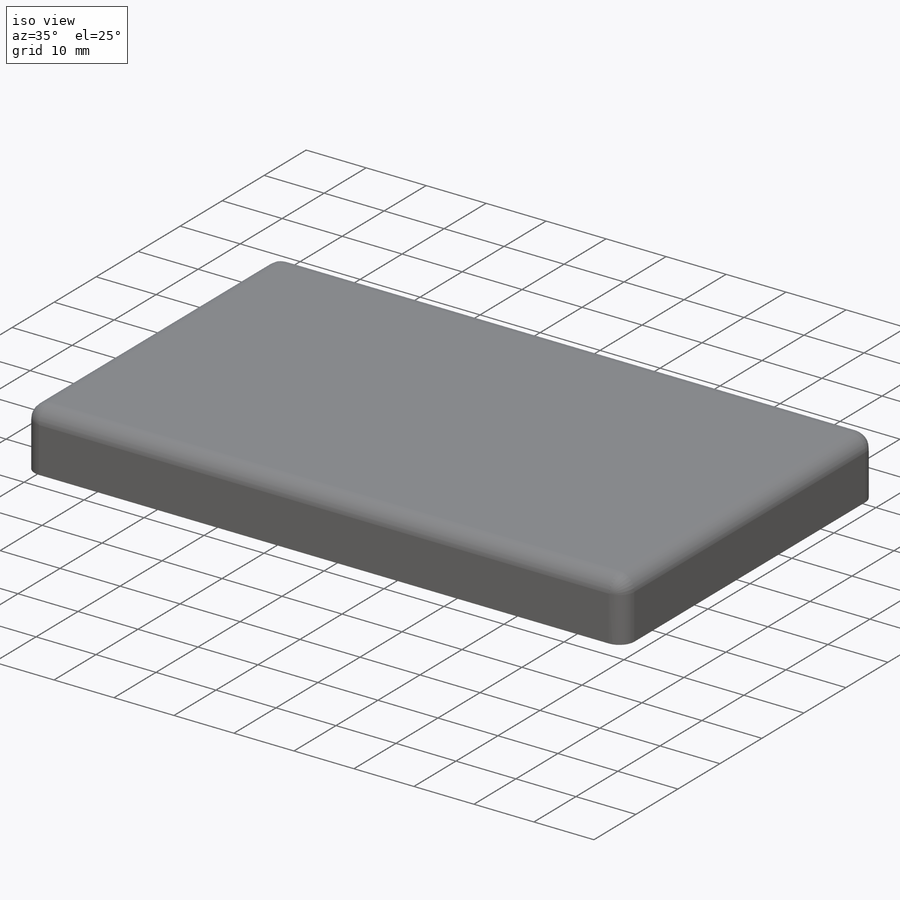
[diagram: iso view]
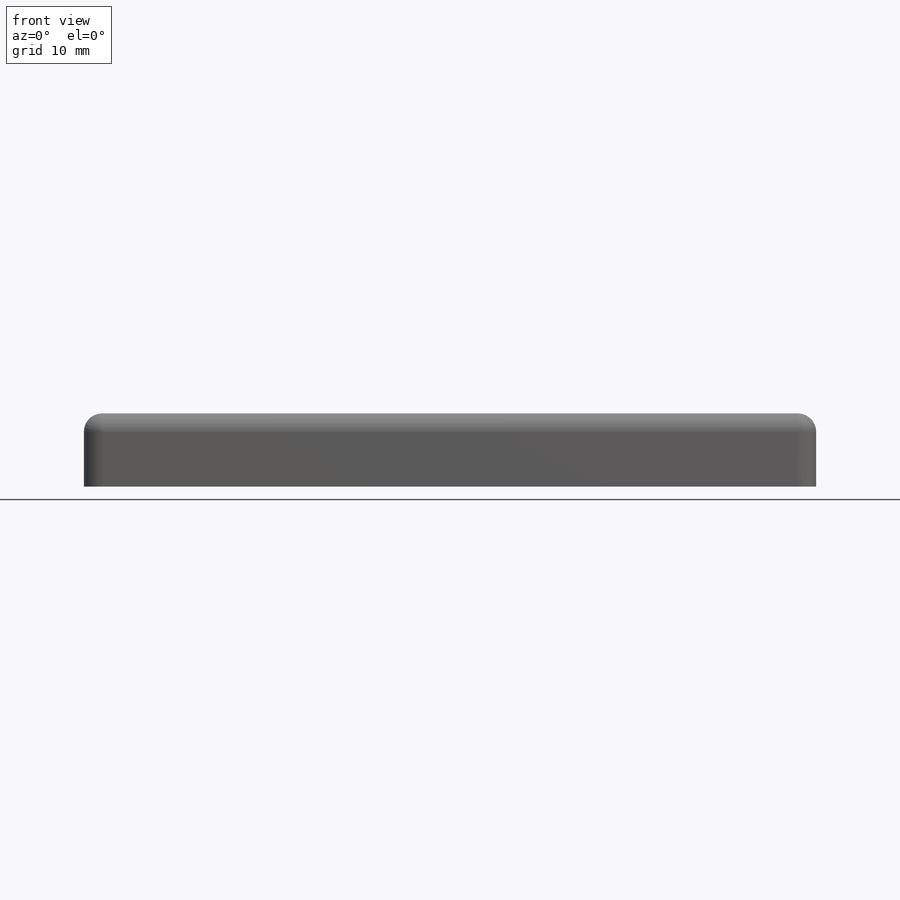
[diagram: front view]
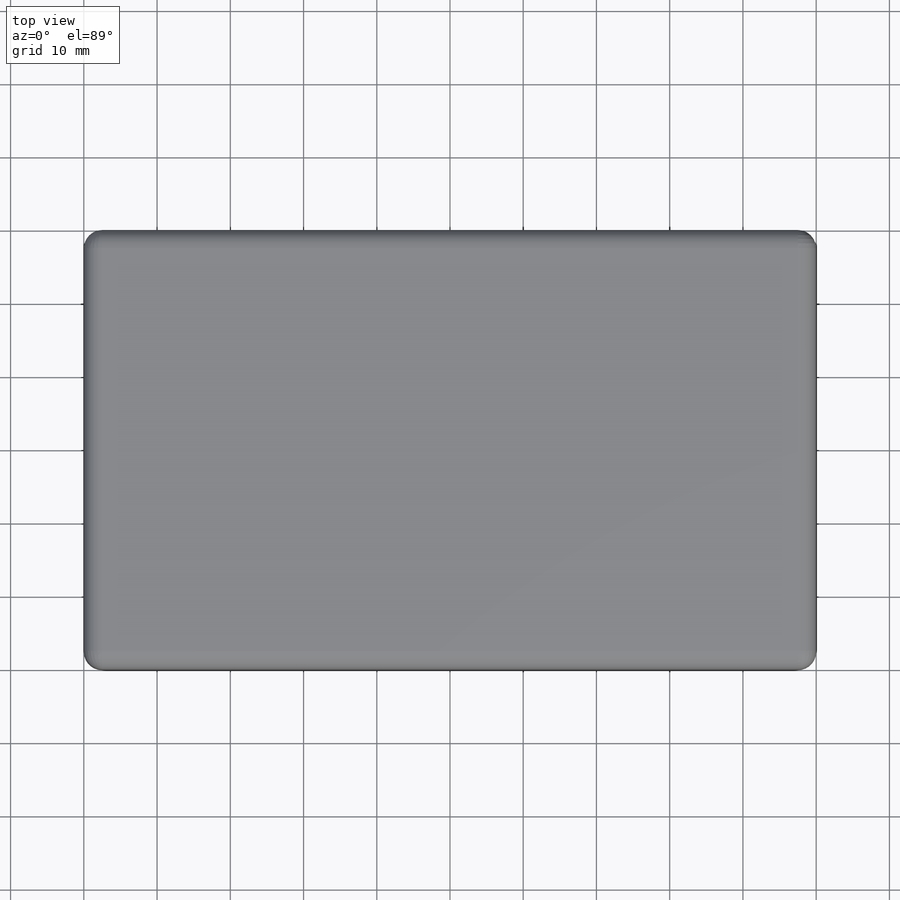
[diagram: top view]
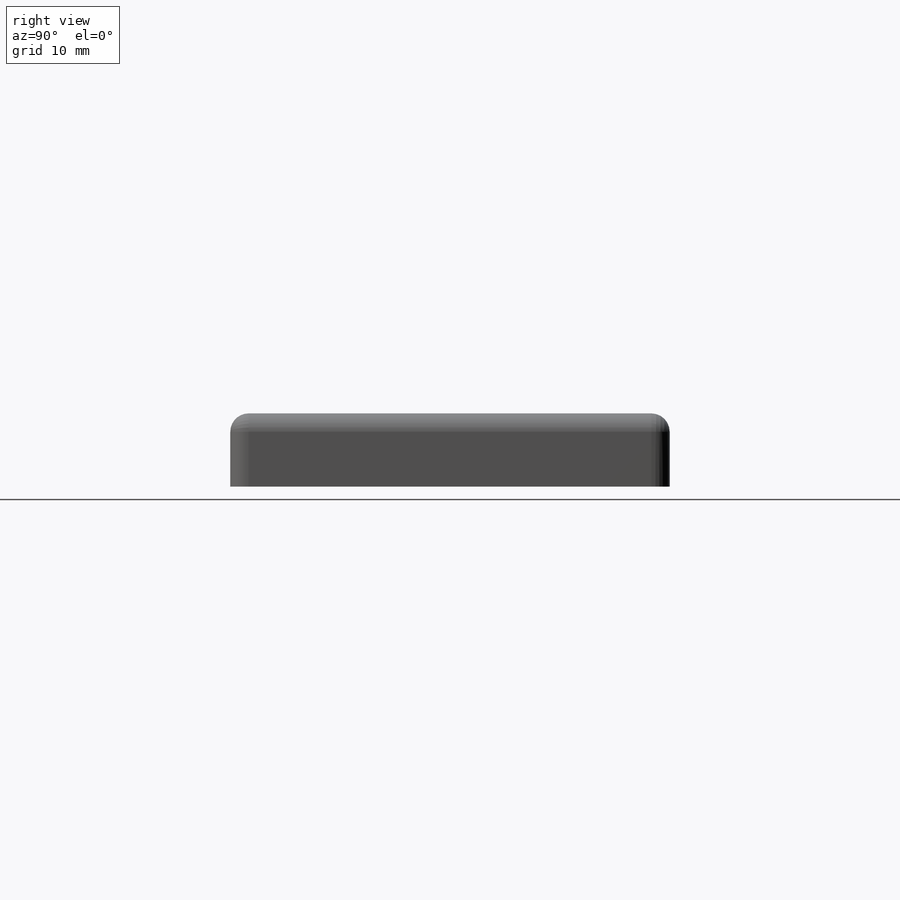
[diagram: right view]
SOLIDWORKS PART (.sldprt)
format: sldprt  version: not decoded by parser v0  size: 192,512 bytes
history: native  units: mm
features: material x1, sketch x1, extrude x1, shell x1, fillet x1, chamfer x1 (+11 scaffold rows collapsed)
feature tree (17):
  scaffold x11  (default folders/planes/origin — collapsed)
  material  "Acrylic (Medium-high impact)"
  sketch  "Sketch1"  dims[D3=2.5mm D1=100.0mm D2=60.0mm]
  extrude  "Boss-Extrude1"  Depth=10mm
  shell  "Shell1"  Thickness=1.25mm
  fillet  "Fillet1"  Radius=2.5mm
  chamfer  "Chamfer1"  Distance=1.25mm Angle=45deg
decode coverage: 5 of 5 modeling features carry decoded parameters
note: provenance and decode notes live in map.json
